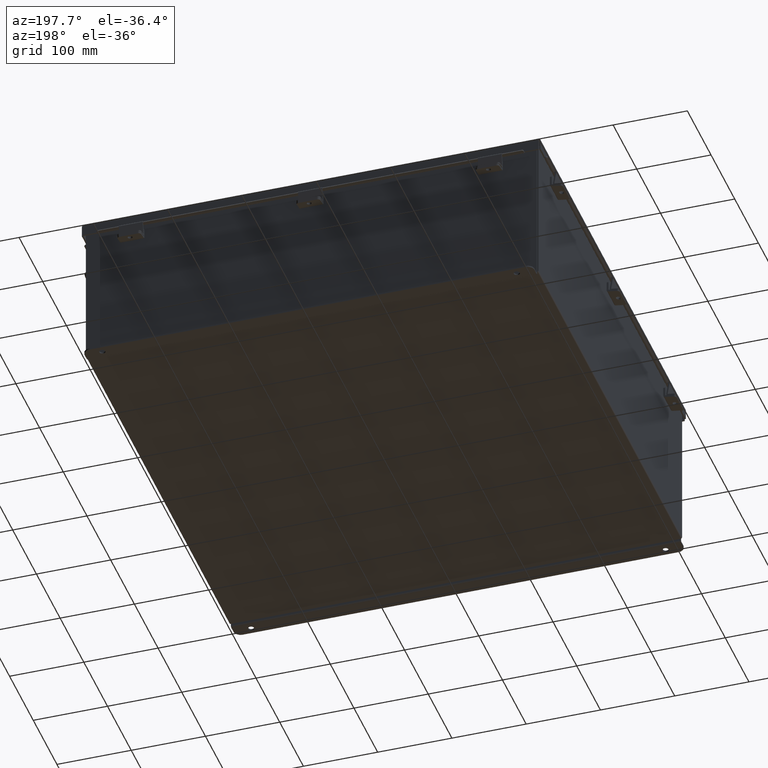
[diagram: clean part render]
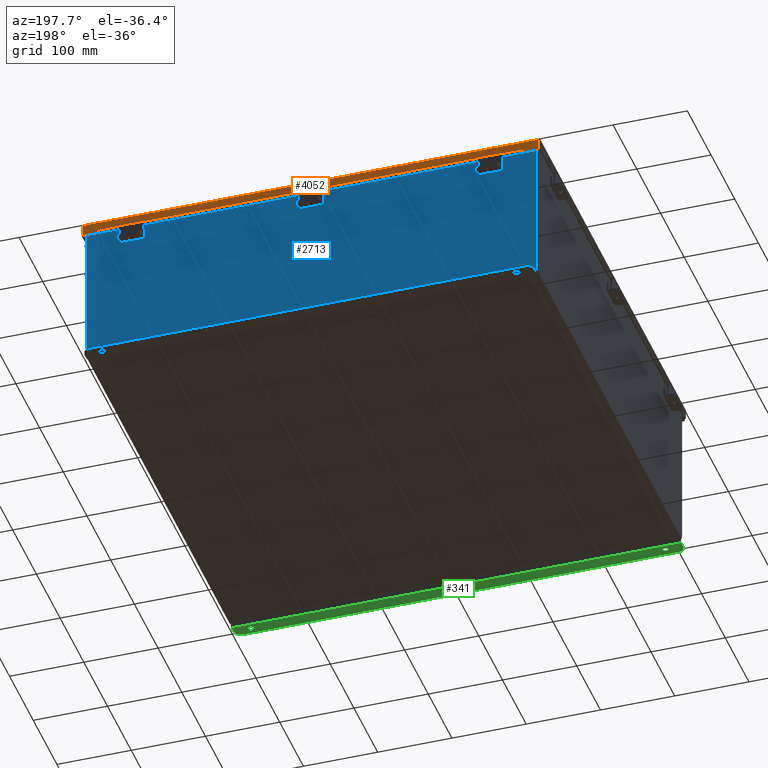
[diagram: same view with three faces highlighted in distinct colors, each labeled with its STEP entity id]
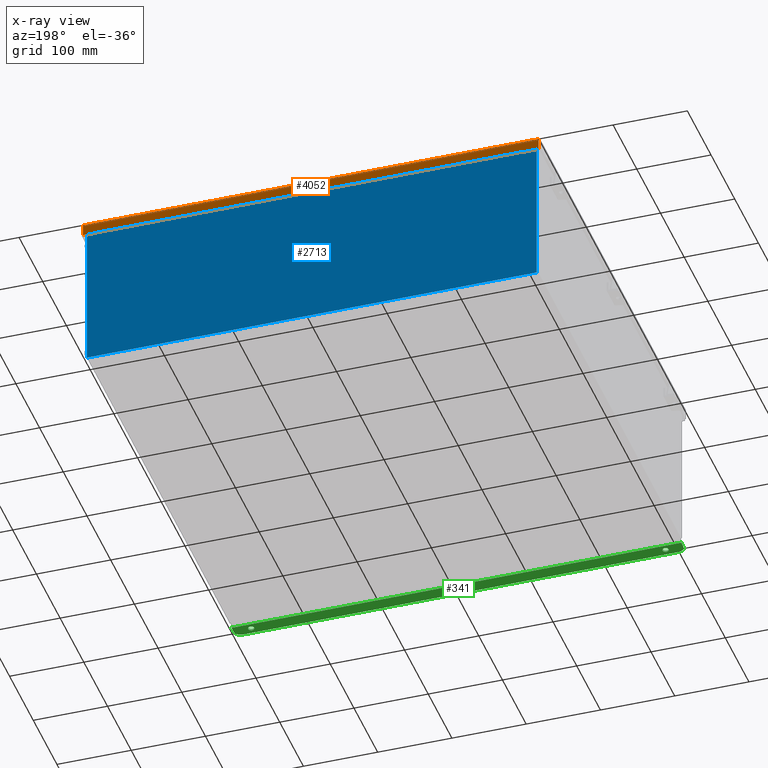
[diagram: x-ray of the same camera — body ghosted, the three highlighted faces saturated]
A machine part, auxiliary view with three faces highlighted in distinct colors.
The next image is the same camera in x-ray (body ghosted, the three faces saturated) — at least one of them is partly hidden behind the body in this view.
Their STEP definitions:

[orange] entity #4052 — the highlighted planar face has unit normal (-0, -1, -0).
#241 = VECTOR ( 'NONE', #4126, 39.37007874015748100 ) ;
#281 = VECTOR ( 'NONE', #8655, 39.37007874015748100 ) ;
#439 = EDGE_CURVE ( 'NONE', #7469, #4061, #7586, .T. ) ;
#516 = VERTEX_POINT ( 'NONE', #3145 ) ;
#799 = PLANE ( 'NONE',  #8083 ) ;
#865 = CARTESIAN_POINT ( 'NONE',  ( -2.134256245050205600E-018, 12.15625000000000000, 0.6122999999999994000 ) ) ;
#986 = CARTESIAN_POINT ( 'NONE',  ( -2.134256245050205600E-018, 12.15625000000000000, 0.6122999999999994000 ) ) ;
#1007 = EDGE_CURVE ( 'NONE', #3359, #8227, #4851, .T. ) ;
#1047 = VERTEX_POINT ( 'NONE', #6515 ) ;
#1065 = EDGE_CURVE ( 'NONE', #3359, #516, #1942, .T. ) ;
#1116 = CARTESIAN_POINT ( 'NONE',  ( 12.07447893218817300, 12.15625000000000000, 0.6123000000000005100 ) ) ;
#1393 = DIRECTION ( 'NONE',  ( -1.000000000000000000, -3.191323508412551400E-030, -0.0000000000000000000 ) ) ;
#1756 = LINE ( 'NONE', #5031, #3296 ) ;
#1795 = DIRECTION ( 'NONE',  ( 1.000000000000000000, 3.215610014906585900E-030, 2.809098193999883300E-018 ) ) ;
#1942 = LINE ( 'NONE', #2177, #7434 ) ;
#2070 = ORIENTED_EDGE ( 'NONE', *, *, #7958, .T. ) ;
#2105 = EDGE_CURVE ( 'NONE', #7469, #1047, #6484, .T. ) ;
#2177 = CARTESIAN_POINT ( 'NONE',  ( 11.32447893218817300, 12.15625000000000200, 0.6123000000000005100 ) ) ;
#2207 = VECTOR ( 'NONE', #3497, 39.37007874015748100 ) ;
#2323 = DIRECTION ( 'NONE',  ( -3.347543324056399800E-030, -1.000000000000000000, 3.569293475308532400E-015 ) ) ;
#2558 = CARTESIAN_POINT ( 'NONE',  ( -11.32447893218815200, 12.15625000000000000, 0.5967115427318782100 ) ) ;
#2648 = ORIENTED_EDGE ( 'NONE', *, *, #7319, .F. ) ;
#2882 = ORIENTED_EDGE ( 'NONE', *, *, #1065, .F. ) ;
#2922 = CARTESIAN_POINT ( 'NONE',  ( 12.07447893218817300, 12.15624999999999800, 0.0000000000000000000 ) ) ;
#3145 = CARTESIAN_POINT ( 'NONE',  ( 11.32447893218817300, 12.15625000000000000, 0.5967115427318782100 ) ) ;
#3190 = CARTESIAN_POINT ( 'NONE',  ( -11.32447893218816400, 12.15625000000000000, 0.6122999999999994000 ) ) ;
#3296 = VECTOR ( 'NONE', #1393, 39.37007874015748100 ) ;
#3359 = VERTEX_POINT ( 'NONE', #6112 ) ;
#3497 = DIRECTION ( 'NONE',  ( 0.0000000000000000000, 3.569293475308532400E-015, 1.000000000000000000 ) ) ;
#3499 = VERTEX_POINT ( 'NONE', #2558 ) ;
#3679 = CARTESIAN_POINT ( 'NONE',  ( -12.07447893218816400, 12.15624999999999800, 0.01300000000000229300 ) ) ;
#3736 = ORIENTED_EDGE ( 'NONE', *, *, #439, .T. ) ;
#3924 = ORIENTED_EDGE ( 'NONE', *, *, #6516, .F. ) ;
#4052 = ADVANCED_FACE ( 'NONE', ( #5828 ), #799, .F. ) ;
#4061 = VERTEX_POINT ( 'NONE', #5235 ) ;
#4126 = DIRECTION ( 'NONE',  ( -0.0000000000000000000, 3.569293475308532400E-015, 1.000000000000000000 ) ) ;
#4408 = CARTESIAN_POINT ( 'NONE',  ( 0.0000000000000000000, 12.15624999999999800, -4.370956789862821100E-014 ) ) ;
#4624 = EDGE_LOOP ( 'NONE', ( #2882, #8235, #3924, #8183, #3736, #2070, #9402, #2648 ) ) ;
#4699 = VERTEX_POINT ( 'NONE', #3190 ) ;
#4851 = LINE ( 'NONE', #865, #281 ) ;
#4892 = EDGE_CURVE ( 'NONE', #3499, #4699, #9660, .T. ) ;
#5031 = CARTESIAN_POINT ( 'NONE',  ( 11.32447893218816900, 12.15624999999999500, 0.5967115427318782100 ) ) ;
#5235 = CARTESIAN_POINT ( 'NONE',  ( -12.07447893218816400, 12.15625000000000000, 0.6122999999999994000 ) ) ;
#5327 = DIRECTION ( 'NONE',  ( 1.401985044024013700E-013, -4.205955132072028500E-013, -1.000000000000000000 ) ) ;
#5670 = DIRECTION ( 'NONE',  ( -9.813895308167668300E-013, 2.803970088047895600E-013, 1.000000000000000000 ) ) ;
#5750 = CARTESIAN_POINT ( 'NONE',  ( 12.15625000000003900, 12.15624999999999800, 0.01300000000000010700 ) ) ;
#5802 = LINE ( 'NONE', #2922, #241 ) ;
#5828 = FACE_OUTER_BOUND ( 'NONE', #4624, .T. ) ;
#6112 = CARTESIAN_POINT ( 'NONE',  ( 11.32447893218817300, 12.15625000000000000, 0.6123000000000005100 ) ) ;
#6463 = CARTESIAN_POINT ( 'NONE',  ( -12.07447893218816400, 12.15624999999999800, -4.370956789862821100E-014 ) ) ;
#6484 = LINE ( 'NONE', #5750, #8867 ) ;
#6515 = CARTESIAN_POINT ( 'NONE',  ( 12.07447893218817300, 12.15624999999999800, 0.01300000000000010700 ) ) ;
#6516 = EDGE_CURVE ( 'NONE', #1047, #8227, #5802, .T. ) ;
#7044 = DIRECTION ( 'NONE',  ( 1.000000000000000000, 3.079756689383634900E-030, -8.989114220797575600E-017 ) ) ;
#7319 = EDGE_CURVE ( 'NONE', #516, #3499, #1756, .T. ) ;
#7434 = VECTOR ( 'NONE', #5327, 39.37007874015748100 ) ;
#7469 = VERTEX_POINT ( 'NONE', #3679 ) ;
#7586 = LINE ( 'NONE', #6463, #2207 ) ;
#7958 = EDGE_CURVE ( 'NONE', #4061, #4699, #9738, .T. ) ;
#8083 = AXIS2_PLACEMENT_3D ( 'NONE', #4408, #2323, #10022 ) ;
#8183 = ORIENTED_EDGE ( 'NONE', *, *, #2105, .F. ) ;
#8227 = VERTEX_POINT ( 'NONE', #1116 ) ;
#8235 = ORIENTED_EDGE ( 'NONE', *, *, #1007, .T. ) ;
#8256 = VECTOR ( 'NONE', #1795, 39.37007874015748100 ) ;
#8655 = DIRECTION ( 'NONE',  ( 1.000000000000000000, 3.215610014906585900E-030, 2.809098193999883300E-018 ) ) ;
#8867 = VECTOR ( 'NONE', #7044, 39.37007874015748100 ) ;
#8964 = VECTOR ( 'NONE', #5670, 39.37007874015748100 ) ;
#9402 = ORIENTED_EDGE ( 'NONE', *, *, #4892, .F. ) ;
#9571 = CARTESIAN_POINT ( 'NONE',  ( -11.32447893218815200, 12.15624999999999500, 0.5967115427318782100 ) ) ;
#9660 = LINE ( 'NONE', #9571, #8964 ) ;
#9738 = LINE ( 'NONE', #986, #8256 ) ;
#10022 = DIRECTION ( 'NONE',  ( 0.0000000000000000000, -3.569293475308532400E-015, -1.000000000000000000 ) ) ;

[blue] entity #2713 — the highlighted planar face has unit normal (0, -1, 0).
#27 = VECTOR ( 'NONE', #4756, 39.37007874015748100 ) ;
#77 = EDGE_CURVE ( 'NONE', #9161, #4964, #3153, .T. ) ;
#101 = VERTEX_POINT ( 'NONE', #1829 ) ;
#208 = CARTESIAN_POINT ( 'NONE',  ( 0.0000000000000000000, 0.0000000000000000000, 0.0000000000000000000 ) ) ;
#282 = EDGE_LOOP ( 'NONE', ( #1369, #297, #3197, #870, #6318, #9611, #6413, #5153, #4526, #9115, #2243, #1144 ) ) ;
#297 = ORIENTED_EDGE ( 'NONE', *, *, #3081, .F. ) ;
#499 = VERTEX_POINT ( 'NONE', #6496 ) ;
#564 = EDGE_CURVE ( 'NONE', #3743, #4285, #4278, .T. ) ;
#611 = EDGE_CURVE ( 'NONE', #499, #5425, #2800, .T. ) ;
#768 = LINE ( 'NONE', #9546, #6088 ) ;
#827 = EDGE_CURVE ( 'NONE', #2428, #4536, #3403, .T. ) ;
#841 = EDGE_CURVE ( 'NONE', #101, #4309, #6344, .T. ) ;
#870 = ORIENTED_EDGE ( 'NONE', *, *, #7792, .T. ) ;
#1129 = CARTESIAN_POINT ( 'NONE',  ( -11.92530000000000500, 0.0000000000000000000, 3.925299999999999600 ) ) ;
#1144 = ORIENTED_EDGE ( 'NONE', *, *, #9703, .T. ) ;
#1148 = VECTOR ( 'NONE', #4498, 39.37007874015748100 ) ;
#1369 = ORIENTED_EDGE ( 'NONE', *, *, #841, .F. ) ;
#1459 = EDGE_CURVE ( 'NONE', #4964, #9724, #6417, .T. ) ;
#1829 = CARTESIAN_POINT ( 'NONE',  ( -11.61965000000000500, 0.0000000000000000000, 3.874949999999998300 ) ) ;
#1994 = DIRECTION ( 'NONE',  ( 0.0000000000000000000, 0.0000000000000000000, -1.000000000000000000 ) ) ;
#2023 = DIRECTION ( 'NONE',  ( -0.0000000000000000000, 1.000000000000000000, -0.0000000000000000000 ) ) ;
#2243 = ORIENTED_EDGE ( 'NONE', *, *, #611, .T. ) ;
#2291 = LINE ( 'NONE', #9466, #27 ) ;
#2428 = VERTEX_POINT ( 'NONE', #8678 ) ;
#2492 = CARTESIAN_POINT ( 'NONE',  ( 11.60097499999999800, 0.0000000000000000000, 3.874949999999998300 ) ) ;
#2594 = CARTESIAN_POINT ( 'NONE',  ( -11.60097500000000700, 0.0000000000000000000, 3.874949999999998300 ) ) ;
#2647 = CARTESIAN_POINT ( 'NONE',  ( -11.58230000000000700, 4.370956789862821100E-015, 3.912299999999997400 ) ) ;
#2713 = ADVANCED_FACE ( 'NONE', ( #4658 ), #9822, .F. ) ;
#2800 = LINE ( 'NONE', #6629, #1148 ) ;
#2951 = CARTESIAN_POINT ( 'NONE',  ( 11.92529999999999600, 0.0000000000000000000, 3.925299999999999600 ) ) ;
#3081 = EDGE_CURVE ( 'NONE', #4536, #101, #8156, .T. ) ;
#3153 = CIRCLE ( 'NONE', #3429, 0.01867499999999949400 ) ;
#3197 = ORIENTED_EDGE ( 'NONE', *, *, #827, .F. ) ;
#3257 = VECTOR ( 'NONE', #4215, 39.37007874015748100 ) ;
#3323 = CARTESIAN_POINT ( 'NONE',  ( 11.92529999999999600, 0.0000000000000000000, -4.099299999999999500 ) ) ;
#3403 = LINE ( 'NONE', #9165, #3257 ) ;
#3429 = AXIS2_PLACEMENT_3D ( 'NONE', #2492, #7014, #5990 ) ;
#3674 = CARTESIAN_POINT ( 'NONE',  ( -11.58230000000000700, 0.0000000000000000000, 3.874949999999998300 ) ) ;
#3743 = VERTEX_POINT ( 'NONE', #2951 ) ;
#3837 = CARTESIAN_POINT ( 'NONE',  ( -11.61965000000000500, 0.0000000000000000000, 0.0000000000000000000 ) ) ;
#4215 = DIRECTION ( 'NONE',  ( 0.0000000000000000000, 0.0000000000000000000, -1.000000000000000000 ) ) ;
#4231 = VECTOR ( 'NONE', #5758, 39.37007874015748100 ) ;
#4278 = LINE ( 'NONE', #6334, #7085 ) ;
#4285 = VERTEX_POINT ( 'NONE', #3323 ) ;
#4309 = VERTEX_POINT ( 'NONE', #4553 ) ;
#4498 = DIRECTION ( 'NONE',  ( -0.0000000000000000000, -0.0000000000000000000, 1.000000000000000000 ) ) ;
#4510 = CARTESIAN_POINT ( 'NONE',  ( -11.92530000000000500, 0.0000000000000000000, 3.925299999999999600 ) ) ;
#4526 = ORIENTED_EDGE ( 'NONE', *, *, #564, .T. ) ;
#4536 = VERTEX_POINT ( 'NONE', #3674 ) ;
#4553 = CARTESIAN_POINT ( 'NONE',  ( -11.61965000000000500, 0.0000000000000000000, 3.925299999999999600 ) ) ;
#4654 = CARTESIAN_POINT ( 'NONE',  ( 11.58229999999999800, 0.0000000000000000000, 3.912299999999997400 ) ) ;
#4658 = FACE_OUTER_BOUND ( 'NONE', #282, .T. ) ;
#4683 = CARTESIAN_POINT ( 'NONE',  ( 11.61964999999999800, 0.0000000000000000000, 3.925299999999999600 ) ) ;
#4756 = DIRECTION ( 'NONE',  ( -4.340572780399816900E-014, 0.0000000000000000000, -1.000000000000000000 ) ) ;
#4820 = DIRECTION ( 'NONE',  ( 0.0000000000000000000, 0.0000000000000000000, -1.000000000000000000 ) ) ;
#4905 = DIRECTION ( 'NONE',  ( 0.0000000000000000000, 0.0000000000000000000, 1.000000000000000000 ) ) ;
#4964 = VERTEX_POINT ( 'NONE', #8638 ) ;
#5060 = CARTESIAN_POINT ( 'NONE',  ( 11.61964999999999800, 0.0000000000000000000, 3.874949999999998300 ) ) ;
#5088 = EDGE_CURVE ( 'NONE', #499, #4285, #768, .T. ) ;
#5153 = ORIENTED_EDGE ( 'NONE', *, *, #10056, .T. ) ;
#5376 = CARTESIAN_POINT ( 'NONE',  ( -11.92530000000000500, 0.0000000000000000000, 3.925299999999999600 ) ) ;
#5425 = VERTEX_POINT ( 'NONE', #5376 ) ;
#5563 = AXIS2_PLACEMENT_3D ( 'NONE', #208, #7534, #7777 ) ;
#5618 = DIRECTION ( 'NONE',  ( 1.000000000000000000, 0.0000000000000000000, 0.0000000000000000000 ) ) ;
#5740 = VECTOR ( 'NONE', #4905, 39.37007874015748100 ) ;
#5758 = DIRECTION ( 'NONE',  ( 1.000000000000000000, 0.0000000000000000000, 2.290800226127865500E-017 ) ) ;
#5878 = LINE ( 'NONE', #2647, #6020 ) ;
#5990 = DIRECTION ( 'NONE',  ( 0.0000000000000000000, 0.0000000000000000000, -1.000000000000000000 ) ) ;
#6020 = VECTOR ( 'NONE', #5618, 39.37007874015748100 ) ;
#6088 = VECTOR ( 'NONE', #6259, 39.37007874015748100 ) ;
#6258 = AXIS2_PLACEMENT_3D ( 'NONE', #2594, #2023, #1994 ) ;
#6259 = DIRECTION ( 'NONE',  ( 1.000000000000000000, 8.208677865577646300E-017, -0.0000000000000000000 ) ) ;
#6308 = LINE ( 'NONE', #1129, #4231 ) ;
#6318 = ORIENTED_EDGE ( 'NONE', *, *, #1459, .F. ) ;
#6334 = CARTESIAN_POINT ( 'NONE',  ( 11.92529999999999600, 0.0000000000000000000, 3.925299999999999600 ) ) ;
#6344 = LINE ( 'NONE', #3837, #5740 ) ;
#6413 = ORIENTED_EDGE ( 'NONE', *, *, #9825, .F. ) ;
#6417 = LINE ( 'NONE', #9401, #8810 ) ;
#6496 = CARTESIAN_POINT ( 'NONE',  ( -11.92530000000000400, -2.185478394931410600E-015, -4.099299999999999500 ) ) ;
#6629 = CARTESIAN_POINT ( 'NONE',  ( -11.92530000000000500, 0.0000000000000000000, 3.925299999999999600 ) ) ;
#7014 = DIRECTION ( 'NONE',  ( -0.0000000000000000000, 1.000000000000000000, -0.0000000000000000000 ) ) ;
#7085 = VECTOR ( 'NONE', #4820, 39.37007874015748100 ) ;
#7183 = VECTOR ( 'NONE', #8433, 39.37007874015748100 ) ;
#7443 = LINE ( 'NONE', #4510, #7183 ) ;
#7534 = DIRECTION ( 'NONE',  ( 0.0000000000000000000, -1.000000000000000000, 0.0000000000000000000 ) ) ;
#7704 = DIRECTION ( 'NONE',  ( 0.0000000000000000000, 0.0000000000000000000, 1.000000000000000000 ) ) ;
#7777 = DIRECTION ( 'NONE',  ( 0.0000000000000000000, -0.0000000000000000000, -1.000000000000000000 ) ) ;
#7792 = EDGE_CURVE ( 'NONE', #2428, #9724, #5878, .T. ) ;
#8156 = CIRCLE ( 'NONE', #6258, 0.01867499999999949400 ) ;
#8433 = DIRECTION ( 'NONE',  ( 1.000000000000000000, 0.0000000000000000000, 2.290800226127865500E-017 ) ) ;
#8638 = CARTESIAN_POINT ( 'NONE',  ( 11.58229999999999800, 0.0000000000000000000, 3.874949999999998300 ) ) ;
#8678 = CARTESIAN_POINT ( 'NONE',  ( -11.58230000000000700, 4.370956789862821100E-015, 3.912299999999997400 ) ) ;
#8810 = VECTOR ( 'NONE', #7704, 39.37007874015748100 ) ;
#9115 = ORIENTED_EDGE ( 'NONE', *, *, #5088, .F. ) ;
#9161 = VERTEX_POINT ( 'NONE', #5060 ) ;
#9165 = CARTESIAN_POINT ( 'NONE',  ( -11.58230000000000700, 0.0000000000000000000, 0.0000000000000000000 ) ) ;
#9401 = CARTESIAN_POINT ( 'NONE',  ( 11.58229999999999800, 0.0000000000000000000, 0.0000000000000000000 ) ) ;
#9466 = CARTESIAN_POINT ( 'NONE',  ( 11.61964999999983000, 0.0000000000000000000, -5.042991396304229400E-013 ) ) ;
#9546 = CARTESIAN_POINT ( 'NONE',  ( -11.92530000000000500, -2.185478394931410600E-015, -4.099299999999999500 ) ) ;
#9611 = ORIENTED_EDGE ( 'NONE', *, *, #77, .F. ) ;
#9703 = EDGE_CURVE ( 'NONE', #5425, #4309, #7443, .T. ) ;
#9724 = VERTEX_POINT ( 'NONE', #4654 ) ;
#9778 = VERTEX_POINT ( 'NONE', #4683 ) ;
#9822 = PLANE ( 'NONE',  #5563 ) ;
#9825 = EDGE_CURVE ( 'NONE', #9778, #9161, #2291, .T. ) ;
#10056 = EDGE_CURVE ( 'NONE', #9778, #3743, #6308, .T. ) ;

[green] entity #341 — the highlighted planar face has unit normal (0, -0, 1).
#9 = VECTOR ( 'NONE', #7368, 39.37007874015748100 ) ;
#24 = VERTEX_POINT ( 'NONE', #3759 ) ;
#161 = DIRECTION ( 'NONE',  ( 0.0000000000000000000, -3.362274453740631800E-015, -1.000000000000000000 ) ) ;
#231 = ORIENTED_EDGE ( 'NONE', *, *, #2974, .T. ) ;
#341 = ADVANCED_FACE ( 'NONE', ( #9832, #4032, #5403 ), #8348, .F. ) ;
#347 = VERTEX_POINT ( 'NONE', #5722 ) ;
#418 = CARTESIAN_POINT ( 'NONE',  ( -10.98779999999998000, 0.5187999999999987100, -4.187000000000001200 ) ) ;
#519 = CIRCLE ( 'NONE', #7548, 0.1560000000000000600 ) ;
#534 = CARTESIAN_POINT ( 'NONE',  ( 11.55030000000001800, 0.7378000000000163300, -4.186999999999998500 ) ) ;
#535 = CARTESIAN_POINT ( 'NONE',  ( -11.55029999999997900, 0.3627999999999986800, -4.186999999999996700 ) ) ;
#631 = ORIENTED_EDGE ( 'NONE', *, *, #2991, .T. ) ;
#1107 = DIRECTION ( 'NONE',  ( 0.0000000000000000000, 1.000000000000000000, -3.502369222646490200E-015 ) ) ;
#1287 = EDGE_CURVE ( 'NONE', #8481, #347, #8828, .T. ) ;
#1308 = DIRECTION ( 'NONE',  ( 0.0000000000000000000, -1.000000000000000000, 4.370956789862820400E-015 ) ) ;
#1379 = CARTESIAN_POINT ( 'NONE',  ( 11.55030000000001800, 0.3628000000000161700, -4.187000000000001200 ) ) ;
#1482 = CIRCLE ( 'NONE', #3860, 0.3750000000000000600 ) ;
#1492 = CIRCLE ( 'NONE', #8006, 0.1560000000000000600 ) ;
#1590 = CARTESIAN_POINT ( 'NONE',  ( 10.98780000000001800, 0.3628000000000161700, -4.186999999999996700 ) ) ;
#1689 = VERTEX_POINT ( 'NONE', #3918 ) ;
#1883 = AXIS2_PLACEMENT_3D ( 'NONE', #2585, #2624, #2657 ) ;
#2112 = DIRECTION ( 'NONE',  ( 0.0000000000000000000, -1.000000000000000000, 4.370956789862820400E-015 ) ) ;
#2133 = VECTOR ( 'NONE', #9077, 39.37007874015748100 ) ;
#2142 = CARTESIAN_POINT ( 'NONE',  ( 11.92530000000001800, 0.3628000000000161700, -4.186999999999996700 ) ) ;
#2583 = ORIENTED_EDGE ( 'NONE', *, *, #3769, .F. ) ;
#2585 = CARTESIAN_POINT ( 'NONE',  ( -10.98779999999998000, 0.3627999999999986800, -4.187000000000001200 ) ) ;
#2624 = DIRECTION ( 'NONE',  ( 0.0000000000000000000, -3.362274453740631800E-015, -1.000000000000000000 ) ) ;
#2657 = DIRECTION ( 'NONE',  ( 0.0000000000000000000, 1.000000000000000000, -3.502369222646490200E-015 ) ) ;
#2840 = VERTEX_POINT ( 'NONE', #9066 ) ;
#2862 = DIRECTION ( 'NONE',  ( -4.919856193148104900E-031, -1.000000000000000000, 3.702694488566362300E-015 ) ) ;
#2895 = VERTEX_POINT ( 'NONE', #5380 ) ;
#2974 = EDGE_CURVE ( 'NONE', #1689, #2895, #6503, .T. ) ;
#2991 = EDGE_CURVE ( 'NONE', #2840, #5759, #7041, .T. ) ;
#3157 = CARTESIAN_POINT ( 'NONE',  ( -2.035385365534024800E-024, -1.529834876451987200E-014, -4.187000000000000300 ) ) ;
#3310 = DIRECTION ( 'NONE',  ( 0.0000000000000000000, -3.362274453740631800E-015, -1.000000000000000000 ) ) ;
#3391 = ORIENTED_EDGE ( 'NONE', *, *, #9658, .F. ) ;
#3397 = EDGE_LOOP ( 'NONE', ( #231, #3500, #631, #5629, #7946, #3391 ) ) ;
#3500 = ORIENTED_EDGE ( 'NONE', *, *, #9578, .T. ) ;
#3569 = CIRCLE ( 'NONE', #1883, 0.1560000000000000600 ) ;
#3686 = EDGE_LOOP ( 'NONE', ( #5851, #6247 ) ) ;
#3759 = CARTESIAN_POINT ( 'NONE',  ( 10.98780000000001800, 0.2068000000000160800, -4.186999999999995800 ) ) ;
#3769 = EDGE_CURVE ( 'NONE', #6822, #24, #519, .T. ) ;
#3860 = AXIS2_PLACEMENT_3D ( 'NONE', #1379, #6774, #2112 ) ;
#3918 = CARTESIAN_POINT ( 'NONE',  ( -11.92529999999999800, 0.01300000000000010700, -4.186999999999995800 ) ) ;
#4027 = EDGE_CURVE ( 'NONE', #7638, #7186, #6553, .T. ) ;
#4032 = FACE_BOUND ( 'NONE', #7305, .T. ) ;
#4360 = CARTESIAN_POINT ( 'NONE',  ( -10.98779999999998000, 0.3627999999999986800, -4.187000000000001200 ) ) ;
#4400 = CARTESIAN_POINT ( 'NONE',  ( 11.92530000000000000, 2.185478394931410600E-015, -4.187000000000000300 ) ) ;
#4846 = VECTOR ( 'NONE', #2862, 39.37007874015748100 ) ;
#5228 = EDGE_CURVE ( 'NONE', #24, #6822, #1492, .T. ) ;
#5359 = LINE ( 'NONE', #7590, #5837 ) ;
#5365 = DIRECTION ( 'NONE',  ( -4.919856193148104900E-031, -1.000000000000000000, 3.702694488566362300E-015 ) ) ;
#5380 = CARTESIAN_POINT ( 'NONE',  ( -11.92529999999998400, 0.3627999999999986800, -4.187000000000001200 ) ) ;
#5403 = FACE_OUTER_BOUND ( 'NONE', #3397, .T. ) ;
#5629 = ORIENTED_EDGE ( 'NONE', *, *, #9642, .T. ) ;
#5722 = CARTESIAN_POINT ( 'NONE',  ( 11.92530000000000000, 0.01300000000001759100, -4.187000000000000300 ) ) ;
#5759 = VERTEX_POINT ( 'NONE', #534 ) ;
#5837 = VECTOR ( 'NONE', #9957, 39.37007874015748100 ) ;
#5851 = ORIENTED_EDGE ( 'NONE', *, *, #8221, .F. ) ;
#5931 = DIRECTION ( 'NONE',  ( -0.0000000000000000000, -3.702694488566362300E-015, -1.000000000000000000 ) ) ;
#6247 = ORIENTED_EDGE ( 'NONE', *, *, #4027, .F. ) ;
#6391 = CARTESIAN_POINT ( 'NONE',  ( -10.98779999999998000, 0.2067999999999986000, -4.187000000000000300 ) ) ;
#6503 = LINE ( 'NONE', #8103, #2133 ) ;
#6528 = AXIS2_PLACEMENT_3D ( 'NONE', #535, #5931, #1308 ) ;
#6553 = CIRCLE ( 'NONE', #8067, 0.1560000000000000600 ) ;
#6742 = DIRECTION ( 'NONE',  ( 0.0000000000000000000, 1.000000000000000000, -3.502369222646490200E-015 ) ) ;
#6761 = DIRECTION ( 'NONE',  ( 0.0000000000000000000, -3.362274453740631800E-015, -1.000000000000000000 ) ) ;
#6774 = DIRECTION ( 'NONE',  ( -0.0000000000000000000, -3.702694488566362300E-015, -1.000000000000000000 ) ) ;
#6822 = VERTEX_POINT ( 'NONE', #8643 ) ;
#7041 = LINE ( 'NONE', #7286, #9 ) ;
#7186 = VERTEX_POINT ( 'NONE', #418 ) ;
#7249 = AXIS2_PLACEMENT_3D ( 'NONE', #3157, #9846, #5365 ) ;
#7286 = CARTESIAN_POINT ( 'NONE',  ( -2.035385365534024800E-024, 0.7378000000000011200, -4.186999999999998500 ) ) ;
#7305 = EDGE_LOOP ( 'NONE', ( #2583, #8910 ) ) ;
#7368 = DIRECTION ( 'NONE',  ( 1.000000000000000000, 4.910036603141682400E-031, 0.0000000000000000000 ) ) ;
#7548 = AXIS2_PLACEMENT_3D ( 'NONE', #8669, #3310, #9375 ) ;
#7590 = CARTESIAN_POINT ( 'NONE',  ( 11.92530000000000000, 0.01300000000001759100, -4.187000000000000300 ) ) ;
#7638 = VERTEX_POINT ( 'NONE', #6391 ) ;
#7946 = ORIENTED_EDGE ( 'NONE', *, *, #1287, .T. ) ;
#8006 = AXIS2_PLACEMENT_3D ( 'NONE', #1590, #161, #1107 ) ;
#8067 = AXIS2_PLACEMENT_3D ( 'NONE', #4360, #6761, #6742 ) ;
#8103 = CARTESIAN_POINT ( 'NONE',  ( -11.92530000000000000, -1.529834876451987200E-014, -4.186999999999995800 ) ) ;
#8221 = EDGE_CURVE ( 'NONE', #7186, #7638, #3569, .T. ) ;
#8348 = PLANE ( 'NONE',  #7249 ) ;
#8481 = VERTEX_POINT ( 'NONE', #2142 ) ;
#8643 = CARTESIAN_POINT ( 'NONE',  ( 10.98780000000001800, 0.5188000000000162500, -4.186999999999996700 ) ) ;
#8669 = CARTESIAN_POINT ( 'NONE',  ( 10.98780000000001800, 0.3628000000000161700, -4.186999999999996700 ) ) ;
#8828 = LINE ( 'NONE', #4400, #4846 ) ;
#8910 = ORIENTED_EDGE ( 'NONE', *, *, #5228, .F. ) ;
#9066 = CARTESIAN_POINT ( 'NONE',  ( -11.55029999999997900, 0.7377999999999989000, -4.187000000000002900 ) ) ;
#9077 = DIRECTION ( 'NONE',  ( 4.919856193148104900E-031, 1.000000000000000000, -3.702694488566362300E-015 ) ) ;
#9375 = DIRECTION ( 'NONE',  ( 0.0000000000000000000, 1.000000000000000000, -3.502369222646490200E-015 ) ) ;
#9578 = EDGE_CURVE ( 'NONE', #2895, #2840, #10063, .T. ) ;
#9642 = EDGE_CURVE ( 'NONE', #5759, #8481, #1482, .T. ) ;
#9658 = EDGE_CURVE ( 'NONE', #1689, #347, #5359, .T. ) ;
#9832 = FACE_BOUND ( 'NONE', #3686, .T. ) ;
#9846 = DIRECTION ( 'NONE',  ( 0.0000000000000000000, 3.702694488566362300E-015, 1.000000000000000000 ) ) ;
#9957 = DIRECTION ( 'NONE',  ( 1.000000000000000000, 2.290800226127906500E-017, -0.0000000000000000000 ) ) ;
#10063 = CIRCLE ( 'NONE', #6528, 0.3750000000000000600 ) ;